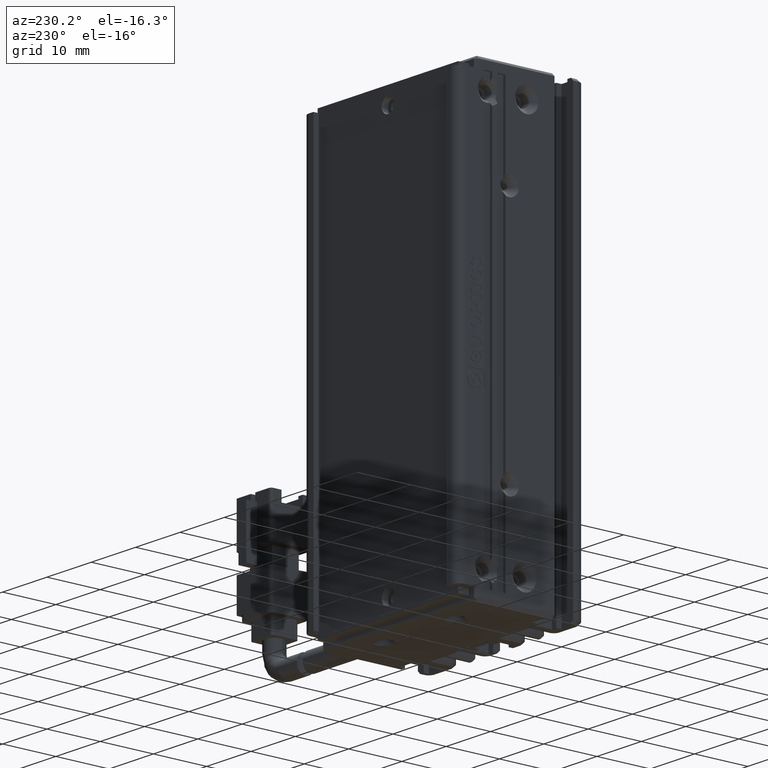
[diagram: clean part render]
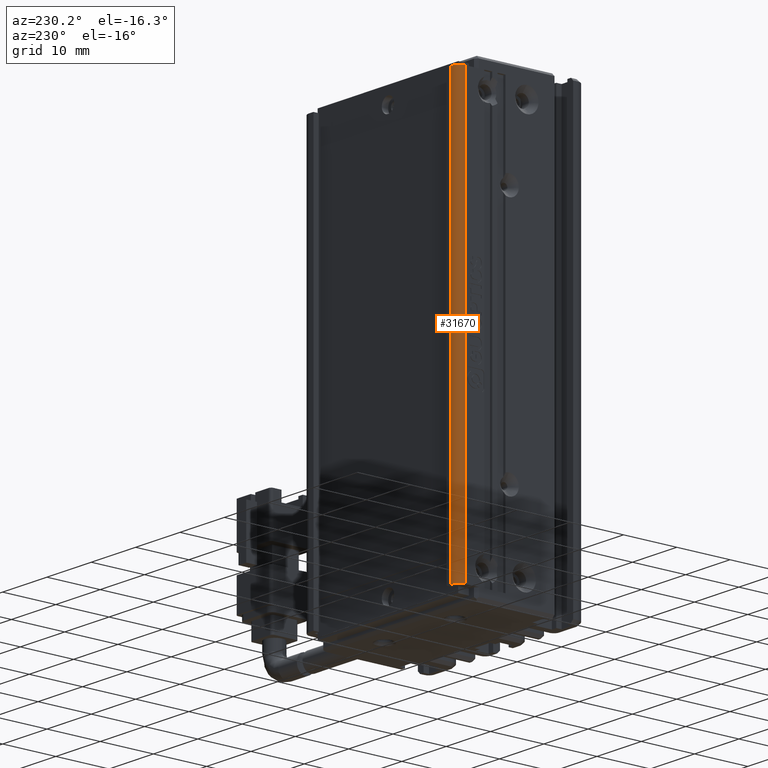
[diagram: same view with one face highlighted and labeled with its STEP entity id]
A machine part, auxiliary view. The second image highlights one B-rep face of the part: STEP entity #31670.
In plain terms, the highlighted cylindrical surface (edge-blend (fillet) strip) has radius 1.5 mm, axis along (-0, -0, -1).
Its self-contained STEP definition (entity closure, byte-faithful):
#332 = CARTESIAN_POINT ( 'NONE',  ( 24.92537974683542500, 33.49073232304837000, -74.00000000000001400 ) ) ;
#373 = CARTESIAN_POINT ( 'NONE',  ( 24.92537974683542100, 34.99073232304837000, -154.0000000000000000 ) ) ;
#499 = CARTESIAN_POINT ( 'NONE',  ( 23.42537974683542100, 33.49073232304837000, -76.00000000000001400 ) ) ;
#5095 = DIRECTION ( 'NONE',  ( -0.0000000000000000000, -0.0000000000000000000, -1.000000000000000000 ) ) ;
#5365 = ORIENTED_EDGE ( 'NONE', *, *, #14454, .F. ) ;
#6287 = DIRECTION ( 'NONE',  ( -0.0000000000000000000, -0.0000000000000000000, -1.000000000000000000 ) ) ;
#6315 = CYLINDRICAL_SURFACE ( 'NONE', #33830, 1.500000000000001300 ) ;
#6598 = CARTESIAN_POINT ( 'NONE',  ( 23.42537974683542100, 33.49073232304837000, -74.00000000000001400 ) ) ;
#7138 = VERTEX_POINT ( 'NONE', #35966 ) ;
#7614 = CARTESIAN_POINT ( 'NONE',  ( 24.92537974683542500, 34.99073232304837000, -74.00000000000001400 ) ) ;
#8045 = CARTESIAN_POINT ( 'NONE',  ( 24.92537974683542500, 33.49073232304837000, -76.00000000000001400 ) ) ;
#8639 = VECTOR ( 'NONE', #32623, 1000.000000000000000 ) ;
#10919 = EDGE_CURVE ( 'NONE', #26324, #18170, #14045, .T. ) ;
#11651 = ORIENTED_EDGE ( 'NONE', *, *, #16032, .T. ) ;
#12212 = VECTOR ( 'NONE', #5095, 1000.000000000000000 ) ;
#14045 = LINE ( 'NONE', #7614, #12212 ) ;
#14454 = EDGE_CURVE ( 'NONE', #7138, #18170, #31748, .T. ) ;
#16032 = EDGE_CURVE ( 'NONE', #20503, #26324, #23273, .T. ) ;
#18170 = VERTEX_POINT ( 'NONE', #373 ) ;
#19517 = AXIS2_PLACEMENT_3D ( 'NONE', #29841, #6287, #26773 ) ;
#20052 = DIRECTION ( 'NONE',  ( -0.0000000000000000000, -0.0000000000000000000, -1.000000000000000000 ) ) ;
#20229 = DIRECTION ( 'NONE',  ( -1.000000000000000000, 0.0000000000000000000, 0.0000000000000000000 ) ) ;
#20352 = DIRECTION ( 'NONE',  ( -0.0000000000000000000, -0.0000000000000000000, -1.000000000000000000 ) ) ;
#20503 = VERTEX_POINT ( 'NONE', #499 ) ;
#23273 = CIRCLE ( 'NONE', #35377, 1.500000000000001300 ) ;
#25638 = CARTESIAN_POINT ( 'NONE',  ( 24.92537974683542100, 34.99073232304837000, -76.00000000000001400 ) ) ;
#26324 = VERTEX_POINT ( 'NONE', #25638 ) ;
#26773 = DIRECTION ( 'NONE',  ( -1.000000000000000000, 0.0000000000000000000, 0.0000000000000000000 ) ) ;
#27342 = ORIENTED_EDGE ( 'NONE', *, *, #10919, .T. ) ;
#27935 = ORIENTED_EDGE ( 'NONE', *, *, #31225, .T. ) ;
#29841 = CARTESIAN_POINT ( 'NONE',  ( 24.92537974683542500, 33.49073232304837000, -154.0000000000000000 ) ) ;
#31225 = EDGE_CURVE ( 'NONE', #7138, #20503, #33446, .T. ) ;
#31293 = EDGE_LOOP ( 'NONE', ( #5365, #27935, #11651, #27342 ) ) ;
#31634 = DIRECTION ( 'NONE',  ( -1.000000000000000000, 0.0000000000000000000, 0.0000000000000000000 ) ) ;
#31670 = ADVANCED_FACE ( 'NONE', ( #34789 ), #6315, .T. ) ;
#31748 = CIRCLE ( 'NONE', #19517, 1.500000000000001300 ) ;
#32623 = DIRECTION ( 'NONE',  ( 0.0000000000000000000, 0.0000000000000000000, 1.000000000000000000 ) ) ;
#33446 = LINE ( 'NONE', #6598, #8639 ) ;
#33830 = AXIS2_PLACEMENT_3D ( 'NONE', #332, #20352, #20229 ) ;
#34789 = FACE_OUTER_BOUND ( 'NONE', #31293, .T. ) ;
#35377 = AXIS2_PLACEMENT_3D ( 'NONE', #8045, #20052, #31634 ) ;
#35966 = CARTESIAN_POINT ( 'NONE',  ( 23.42537974683542100, 33.49073232304837000, -154.0000000000000000 ) ) ;